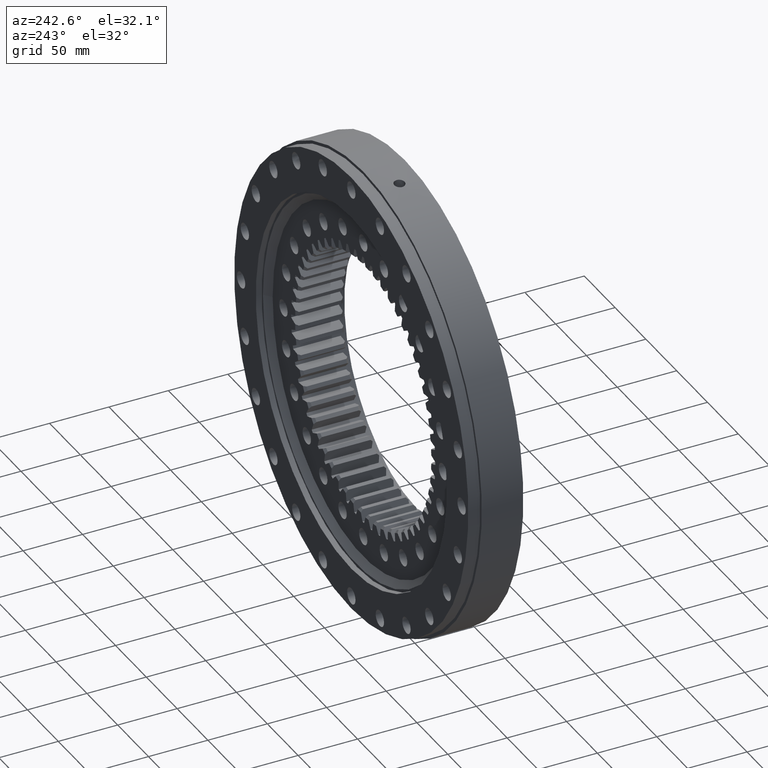
[diagram: clean part render]
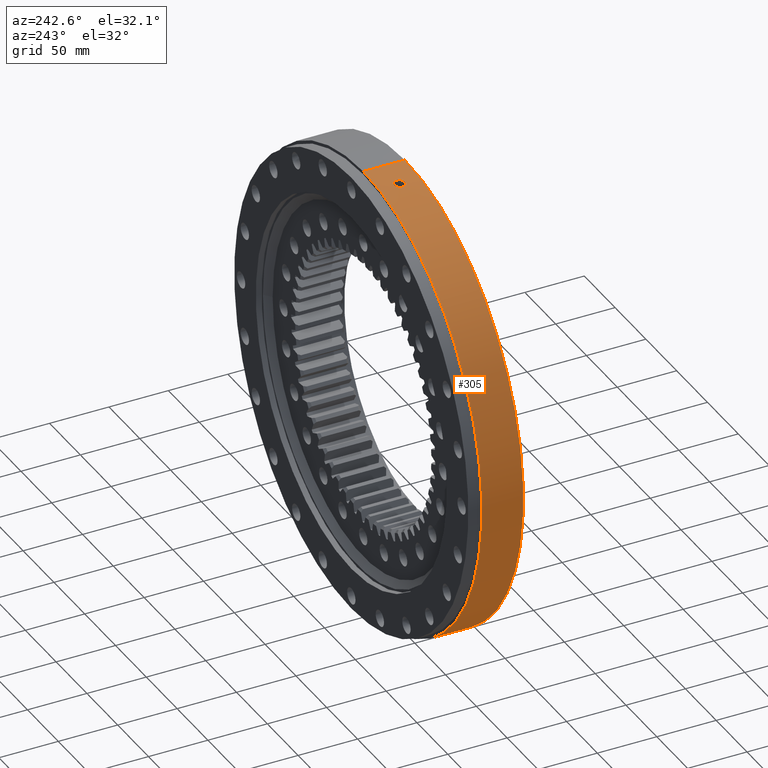
[diagram: same view with one face highlighted and labeled with its STEP entity id]
A machine part, auxiliary view. The second image highlights one B-rep face of the part: STEP entity #305.
In plain terms, the highlighted cylindrical surface (partial cylindrical patch) has radius 192.5 mm, axis along (0, -1, -0).
Its self-contained STEP definition (entity closure, byte-faithful):
#152 = EDGE_LOOP ( 'NONE', ( #16437, #15893 ) ) ;
#187 = CARTESIAN_POINT ( 'NONE',  ( -26.28347386627693900, 4.355934236713443000, 190.6974387365306400 ) ) ;
#305 = ADVANCED_FACE ( 'NONE', ( #1192, #2599 ), #10656, .T. ) ;
#328 = LINE ( 'NONE', #6940, #4199 ) ;
#467 = CARTESIAN_POINT ( 'NONE',  ( -29.58092760168462500, 0.2968404064636467900, 190.2136133987889100 ) ) ;
#477 = CIRCLE ( 'NONE', #5970, 192.5000000000000000 ) ;
#481 = CARTESIAN_POINT ( 'NONE',  ( 2.053970141202327500E-015, -17.49999999999992500, -6.114880371925094700E-016 ) ) ;
#525 = CARTESIAN_POINT ( 'NONE',  ( -21.75981821619084000, 2.972419400505010900, 191.2663181657896100 ) ) ;
#717 = CARTESIAN_POINT ( 'NONE',  ( -20.65792384932032600, -2.940165806483237000E-009, 191.3883491287692800 ) ) ;
#1107 = CARTESIAN_POINT ( 'NONE',  ( -20.65792384932032600, 0.2935342295003749400, 191.3883491287693300 ) ) ;
#1169 = CARTESIAN_POINT ( 'NONE',  ( -24.83695386493876000, 4.500121573353252900, 190.8912307694641900 ) ) ;
#1192 = FACE_BOUND ( 'NONE', #152, .T. ) ;
#1467 = EDGE_CURVE ( 'NONE', #11349, #14979, #4953, .T. ) ;
#1717 = DIRECTION ( 'NONE',  ( 1.173697223544192200E-016, -1.000000000000000000, -3.494217355385783800E-017 ) ) ;
#1857 = CARTESIAN_POINT ( 'NONE',  ( -29.55218113886619200, 0.5890341238762232300, 190.2180902485702600 ) ) ;
#1874 = DIRECTION ( 'NONE',  ( 5.551115123125782700E-017, -3.604620209821936800E-017, 1.000000000000000000 ) ) ;
#1973 = CARTESIAN_POINT ( 'NONE',  ( -27.84780301722385700, 3.576139121794182700, 190.4752229968323400 ) ) ;
#2405 = CARTESIAN_POINT ( 'NONE',  ( -25.70913880299425000, -4.471286644655964300, 190.7757189188007800 ) ) ;
#2599 = FACE_OUTER_BOUND ( 'NONE', #2955, .T. ) ;
#2838 = EDGE_CURVE ( 'NONE', #11585, #14284, #3663, .T. ) ;
#2955 = EDGE_LOOP ( 'NONE', ( #7307, #16831, #16142, #3623 ) ) ;
#2967 = CARTESIAN_POINT ( 'NONE',  ( -2.053970141202340900E-015, 17.50000000000003600, 6.114880371925134200E-016 ) ) ;
#3036 = CARTESIAN_POINT ( 'NONE',  ( -20.65792384932032600, -2.940165806483237000E-009, 191.3883491287692800 ) ) ;
#3056 = CARTESIAN_POINT ( 'NONE',  ( -21.25079297274620800, 2.257616935022007900, 191.3234966815925000 ) ) ;
#3325 = CARTESIAN_POINT ( 'NONE',  ( -23.69055568324107600, 4.271072294468953400, 191.0368602409755600 ) ) ;
#3379 = CARTESIAN_POINT ( 'NONE',  ( -29.58092760168461400, -2.940167363816776400E-009, 190.2136133987888200 ) ) ;
#3549 = CARTESIAN_POINT ( 'NONE',  ( -25.41749274786125000, -4.500230166976494100, 190.8148039358980000 ) ) ;
#3618 = CARTESIAN_POINT ( 'NONE',  ( -3.165900636059508200E-014, -22.16364734299516200, -192.5000000000000000 ) ) ;
#3623 = ORIENTED_EDGE ( 'NONE', *, *, #10171, .F. ) ;
#3663 = B_SPLINE_CURVE_WITH_KNOTS ( 'NONE', 3,
 ( #3036, #1107, #16365, #16847, #11846, #14980, #3056, #10184, #525, #16269, #6326, #13857, #15874, #3325, #4569, #7414, #1169, #11019, #13212, #187, #8832, #3832, #7819, #1973, #6214, #9669, #16134, #15976, #10040, #7334, #11379, #1857, #467, #16088 ),
 .UNSPECIFIED., .F., .F.,
 ( 4, 2, 2, 2, 2, 2, 2, 2, 2, 2, 2, 2, 2, 2, 2, 2, 4 ),
 ( 0.007036362463903720100, 0.007915742277564044600, 0.008795122091224367300, 0.009674501904884690000, 0.01055388171854501400, 0.01143326153220533900, 0.01231264134586566200, 0.01319202115952598600, 0.01407140097318631100, 0.01495078078684663300, 0.01583016060050696000, 0.01670954041416728200, 0.01758892022782760500, 0.01846830004148793100, 0.01934767985514825700, 0.02022705966880857700, 0.02110643948246890300 ),
 .UNSPECIFIED. ) ;
#3832 = CARTESIAN_POINT ( 'NONE',  ( -27.10155444589922500, 4.044912709693986300, 190.5828667044932300 ) ) ;
#3954 = DIRECTION ( 'NONE',  ( 1.173697223544192200E-016, -1.000000000000000000, -3.494217355385783800E-017 ) ) ;
#4068 = AXIS2_PLACEMENT_3D ( 'NONE', #15424, #6199, #9492 ) ;
#4199 = VECTOR ( 'NONE', #6948, 1000.000000000000000 ) ;
#4569 = CARTESIAN_POINT ( 'NONE',  ( -23.96900512393753100, 4.356022975995905700, 191.0021464356459800 ) ) ;
#4953 = CIRCLE ( 'NONE', #5582, 192.5000000000000000 ) ;
#5185 = CARTESIAN_POINT ( 'NONE',  ( -23.96790220985875700, -4.355667258447708100, 191.0022835298382500 ) ) ;
#5219 = VERTEX_POINT ( 'NONE', #13276 ) ;
#5325 = CARTESIAN_POINT ( 'NONE',  ( -29.58092760168462100, -0.2967504554262956300, 190.2136133987887900 ) ) ;
#5548 = CARTESIAN_POINT ( 'NONE',  ( -27.10179845741232500, -4.044785781650711300, 190.5828318939361200 ) ) ;
#5582 = AXIS2_PLACEMENT_3D ( 'NONE', #2967, #7716, #5866 ) ;
#5808 = VECTOR ( 'NONE', #3954, 1000.000000000000000 ) ;
#5866 = DIRECTION ( 'NONE',  ( -5.551115123125783900E-017, 9.011550524554842000E-017, -1.000000000000000000 ) ) ;
#5878 = CARTESIAN_POINT ( 'NONE',  ( -23.68438305413638600, -4.268940047051796000, 191.0376250147933800 ) ) ;
#5890 = CARTESIAN_POINT ( 'NONE',  ( -22.40170817153537900, -3.577497589919330000, 191.1922415620640800 ) ) ;
#5911 = CARTESIAN_POINT ( 'NONE',  ( -21.75970517199883900, -2.971934111331699900, 191.2663280589747800 ) ) ;
#5963 = CARTESIAN_POINT ( 'NONE',  ( -20.68619440199821800, -0.5853886590523660300, 191.3853042501560300 ) ) ;
#5970 = AXIS2_PLACEMENT_3D ( 'NONE', #481, #1717, #1874 ) ;
#5988 = CARTESIAN_POINT ( 'NONE',  ( -22.88724109529739800, -3.904355213381077500, 191.1347272412186300 ) ) ;
#6018 = CARTESIAN_POINT ( 'NONE',  ( -22.17181297913806000, -3.387309695887530800, 191.2189941599782200 ) ) ;
#6199 = DIRECTION ( 'NONE',  ( 1.173697223544192200E-016, -1.000000000000000000, -3.494217355385783800E-017 ) ) ;
#6214 = CARTESIAN_POINT ( 'NONE',  ( -28.07206881720534900, 3.389720480889018000, 190.4422537800399200 ) ) ;
#6220 = LINE ( 'NONE', #3618, #5808 ) ;
#6326 = CARTESIAN_POINT ( 'NONE',  ( -22.40365468390569200, 3.578930274360965200, 191.1920126428169100 ) ) ;
#6458 = CARTESIAN_POINT ( 'NONE',  ( 1.068589661201712900E-014, 17.50000000000001800, 192.5000000000000000 ) ) ;
#6858 = CARTESIAN_POINT ( 'NONE',  ( -23.14373665589111400, -4.042729990415533200, 191.1038765319810000 ) ) ;
#6878 = CARTESIAN_POINT ( 'NONE',  ( -24.53829859456308100, -4.470382371549594500, 190.9298419630575600 ) ) ;
#6881 = CARTESIAN_POINT ( 'NONE',  ( -24.82814033955041200, -4.499767108207700900, 190.8923827342578600 ) ) ;
#6940 = CARTESIAN_POINT ( 'NONE',  ( 1.328723774702573700E-014, -22.16364734299517600, 192.5000000000000000 ) ) ;
#6948 = DIRECTION ( 'NONE',  ( 1.173697223544192200E-016, -1.000000000000000000, -3.494217355385783800E-017 ) ) ;
#6965 = CARTESIAN_POINT ( 'NONE',  ( -27.36171997352798300, -3.904582381031735500, 190.5456548599525200 ) ) ;
#6984 = CARTESIAN_POINT ( 'NONE',  ( -26.28603138999225000, -4.355315404730970600, 190.6970878140021700 ) ) ;
#7100 = CARTESIAN_POINT ( 'NONE',  ( -28.67078958371245500, -2.742956849157934600, 190.3529943164610400 ) ) ;
#7264 = CARTESIAN_POINT ( 'NONE',  ( -20.80079265945084900, -1.166190631219407700, 191.3728829967834600 ) ) ;
#7302 = CARTESIAN_POINT ( 'NONE',  ( -20.65792384932032600, -2.940165806483237000E-009, 191.3883491287692800 ) ) ;
#7307 = ORIENTED_EDGE ( 'NONE', *, *, #1467, .F. ) ;
#7334 = CARTESIAN_POINT ( 'NONE',  ( -29.35350670982064600, 1.450722611713823700, 190.2488748422491400 ) ) ;
#7414 = CARTESIAN_POINT ( 'NONE',  ( -24.54112246999387600, 4.470815455117571200, 190.9294803260304400 ) ) ;
#7716 = DIRECTION ( 'NONE',  ( -1.173697223544192200E-016, 1.000000000000000000, 8.822830751849692900E-017 ) ) ;
#7819 = CARTESIAN_POINT ( 'NONE',  ( -27.36011359303336500, 3.905591150945068300, 190.5458865805175300 ) ) ;
#8092 = CARTESIAN_POINT ( 'NONE',  ( -21.24808287607287800, -2.253235466113159700, 191.3237987944363600 ) ) ;
#8175 = CARTESIAN_POINT ( 'NONE',  ( -21.57474398510637300, -2.745304500991042400, 191.2872380296697700 ) ) ;
#8280 = CARTESIAN_POINT ( 'NONE',  ( -21.10931037535308300, -1.991317810135224500, 191.3391219112248800 ) ) ;
#8344 = CARTESIAN_POINT ( 'NONE',  ( -20.65792384932032300, -0.2934452803936186100, 191.3883491287693100 ) ) ;
#8832 = CARTESIAN_POINT ( 'NONE',  ( -26.56523462322983400, 4.269362850530087300, 190.6583636877738000 ) ) ;
#9151 = CARTESIAN_POINT ( 'NONE',  ( -3.426034749560369200E-014, -17.49999999999991800, -192.5000000000000000 ) ) ;
#9492 = DIRECTION ( 'NONE',  ( 5.551115123125782700E-017, -3.604620209821936800E-017, 1.000000000000000000 ) ) ;
#9553 = B_SPLINE_CURVE_WITH_KNOTS ( 'NONE', 3,
 ( #13078, #5325, #12882, #13131, #12847, #13296, #12928, #7100, #13160, #13029, #13184, #6965, #5548, #10619, #6984, #2405, #3549, #6881, #6878, #5185, #5878, #6858, #5988, #5890, #6018, #5911, #8175, #8092, #8280, #14895, #7264, #5963, #8344, #7302 ),
 .UNSPECIFIED., .F., .F.,
 ( 4, 2, 2, 2, 2, 2, 2, 2, 2, 2, 2, 2, 2, 2, 2, 2, 4 ),
 ( 0.02110643948246890300, 0.02198555280176050700, 0.02286466612105211200, 0.02374377944034371200, 0.02462289275963531700, 0.02550200607892692100, 0.02638111939821852200, 0.02726023271751012700, 0.02813934603680173100, 0.02901845935609333500, 0.02989757267538494000, 0.03077668599467654100, 0.03165579931396814200, 0.03253491263325974900, 0.03341402595255135000, 0.03429313927184295100, 0.03517225259113455900 ),
 .UNSPECIFIED. ) ;
#9669 = CARTESIAN_POINT ( 'NONE',  ( -28.48264436464160500, 2.974767624301715600, 190.3812807040030700 ) ) ;
#10040 = CARTESIAN_POINT ( 'NONE',  ( -29.13042788448351000, 1.995158433788019700, 190.2831598070943400 ) ) ;
#10163 = EDGE_CURVE ( 'NONE', #14284, #11585, #9553, .T. ) ;
#10171 = EDGE_CURVE ( 'NONE', #14979, #5219, #328, .T. ) ;
#10184 = CARTESIAN_POINT ( 'NONE',  ( -21.57486397606340800, 2.745183524895791200, 191.2872233811141600 ) ) ;
#10619 = CARTESIAN_POINT ( 'NONE',  ( -26.56563363714100800, -4.269220654100551300, 190.6583079799979100 ) ) ;
#10656 = CYLINDRICAL_SURFACE ( 'NONE', #4068, 192.5000000000000000 ) ;
#11019 = CARTESIAN_POINT ( 'NONE',  ( -25.41933552847051900, 4.499877644770601900, 190.8145530174807300 ) ) ;
#11349 = VERTEX_POINT ( 'NONE', #14937 ) ;
#11379 = CARTESIAN_POINT ( 'NONE',  ( -29.43920051594175600, 1.164454186738525400, 190.2356084986713300 ) ) ;
#11585 = VERTEX_POINT ( 'NONE', #717 ) ;
#11846 = CARTESIAN_POINT ( 'NONE',  ( -20.88623709383967900, 1.449320589289997400, 191.3636011141007000 ) ) ;
#12847 = CARTESIAN_POINT ( 'NONE',  ( -29.35369542551638100, -1.450282953643305100, 190.2488458663079000 ) ) ;
#12882 = CARTESIAN_POINT ( 'NONE',  ( -29.55201043621458000, -0.5902183952271783400, 190.2181167721258000 ) ) ;
#12928 = CARTESIAN_POINT ( 'NONE',  ( -28.99342504924302200, -2.254271883679860100, 190.3041195678908700 ) ) ;
#13029 = CARTESIAN_POINT ( 'NONE',  ( -28.07186303354835700, -3.389925398585957400, 190.4422843146177500 ) ) ;
#13078 = CARTESIAN_POINT ( 'NONE',  ( -29.58092760168461400, -2.940167363816776400E-009, 190.2136133987888200 ) ) ;
#13131 = CARTESIAN_POINT ( 'NONE',  ( -29.43900769525202300, -1.165120367836926400, 190.2356383411770400 ) ) ;
#13160 = CARTESIAN_POINT ( 'NONE',  ( -28.48280372359755600, -2.974609637673967900, 190.3812570637852000 ) ) ;
#13184 = CARTESIAN_POINT ( 'NONE',  ( -27.84778906602535600, -3.576071908617609400, 190.4752239795298300 ) ) ;
#13212 = CARTESIAN_POINT ( 'NONE',  ( -25.70865318014401500, 4.471279001063773100, 190.7757827681889200 ) ) ;
#13276 = CARTESIAN_POINT ( 'NONE',  ( 1.273986675321946000E-014, -17.49999999999993200, 192.5000000000000000 ) ) ;
#13296 = CARTESIAN_POINT ( 'NONE',  ( -29.13014683174139600, -1.995823448489572300, 190.2832029742965600 ) ) ;
#13857 = CARTESIAN_POINT ( 'NONE',  ( -22.88788181785506700, 3.904663571658098400, 191.1346496779132700 ) ) ;
#13881 = EDGE_CURVE ( 'NONE', #11349, #14117, #6220, .T. ) ;
#14117 = VERTEX_POINT ( 'NONE', #9151 ) ;
#14284 = VERTEX_POINT ( 'NONE', #3379 ) ;
#14372 = EDGE_CURVE ( 'NONE', #5219, #14117, #477, .T. ) ;
#14895 = CARTESIAN_POINT ( 'NONE',  ( -20.88652027414207900, -1.449792487580101200, 191.3635697543275900 ) ) ;
#14937 = CARTESIAN_POINT ( 'NONE',  ( -3.426034749560369200E-014, 17.50000000000005300, -192.5000000000000000 ) ) ;
#14979 = VERTEX_POINT ( 'NONE', #6458 ) ;
#14980 = CARTESIAN_POINT ( 'NONE',  ( -21.11055657051079100, 1.994129519736103300, 191.3389848739142600 ) ) ;
#15424 = CARTESIAN_POINT ( 'NONE',  ( 2.601341135008604100E-015, -22.16364734299516900, -7.744460120454373600E-016 ) ) ;
#15874 = CARTESIAN_POINT ( 'NONE',  ( -23.14908328459748100, 4.045407981511910800, 191.1032295446455900 ) ) ;
#15893 = ORIENTED_EDGE ( 'NONE', *, *, #10163, .F. ) ;
#15976 = CARTESIAN_POINT ( 'NONE',  ( -28.99381575256619900, 2.253663683200287900, 190.3040603154335600 ) ) ;
#16088 = CARTESIAN_POINT ( 'NONE',  ( -29.58092760168461400, -2.940167363816776400E-009, 190.2136133987888200 ) ) ;
#16134 = CARTESIAN_POINT ( 'NONE',  ( -28.67055167444252100, 2.743333598166434000, 190.3530304227306800 ) ) ;
#16142 = ORIENTED_EDGE ( 'NONE', *, *, #14372, .F. ) ;
#16269 = CARTESIAN_POINT ( 'NONE',  ( -22.17732724091375800, 3.392491280774255500, 191.2183576698329500 ) ) ;
#16365 = CARTESIAN_POINT ( 'NONE',  ( -20.68713479625910500, 0.5916666442982605500, 191.3852025854869200 ) ) ;
#16437 = ORIENTED_EDGE ( 'NONE', *, *, #2838, .F. ) ;
#16831 = ORIENTED_EDGE ( 'NONE', *, *, #13881, .T. ) ;
#16847 = CARTESIAN_POINT ( 'NONE',  ( -20.80161226208236900, 1.168809090485760400, 191.3727938920903000 ) ) ;